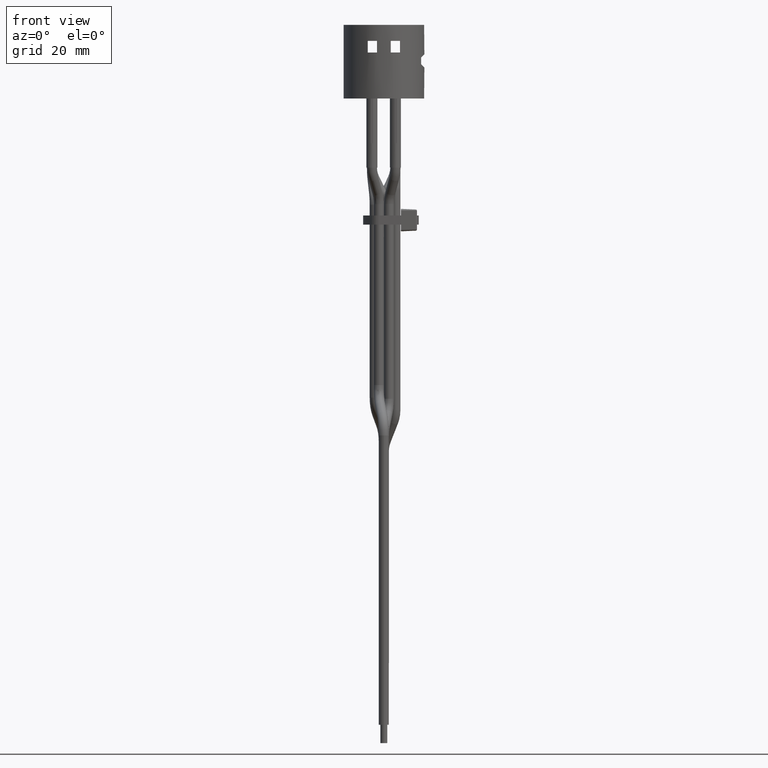
[diagram: clean part render]
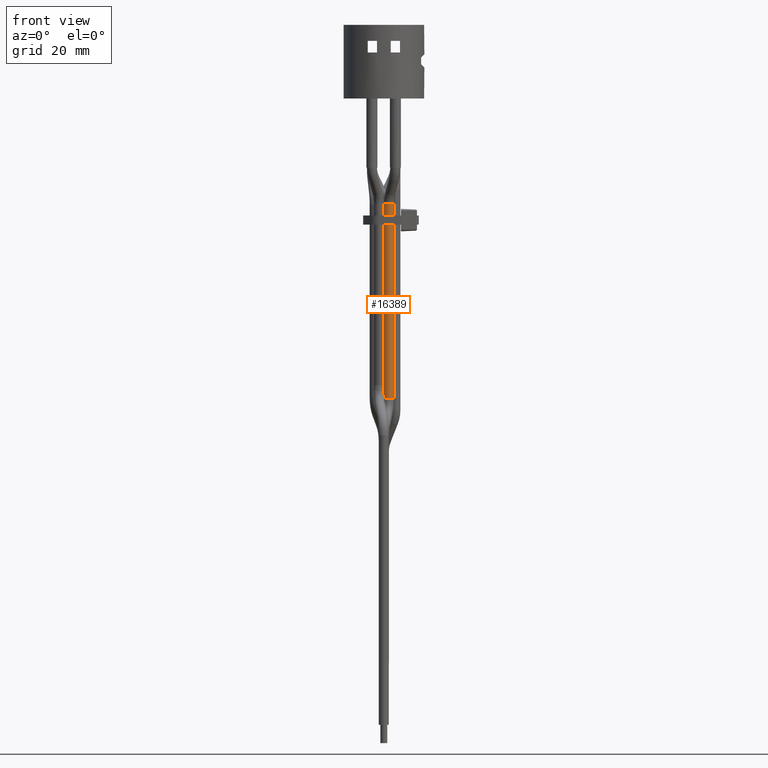
[diagram: same view with one face highlighted and labeled with its STEP entity id]
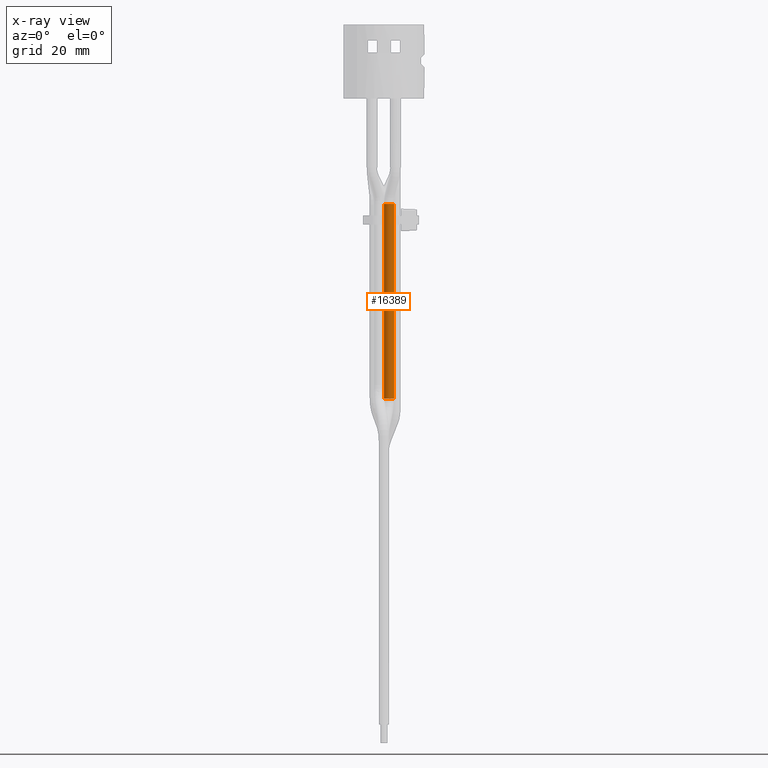
[diagram: x-ray of the same camera — body ghosted, the highlighted face saturated]
A machine part, front view. The second image highlights one B-rep face of the part: STEP entity #16389.
The next image is the same camera in x-ray: the body ghosted, the highlighted face saturated — about 0% of this face is hidden behind the body in this view.
In plain terms, the highlighted cylindrical surface (bore or boss wall) has radius 1.1 mm, axis along (-0, 0, -1).
Its self-contained STEP definition (entity closure, byte-faithful):
#278=B_SPLINE_CURVE_WITH_KNOTS('',3,(#27780,#27781,#27782,#27783,#27784,
#27785,#27786,#27787,#27788,#27789,#27790,#27791,#27792,#27793,#27794,#27795,
#27796,#27797,#27798,#27799,#27800,#27801,#27802,#27803,#27804,#27805,#27806,
#27807,#27808,#27809,#27810,#27811,#27812,#27813,#27814,#27815,#27816,#27817,
#27818,#27819,#27820,#27821,#27822,#27823,#27824,#27825,#27826,#27827,#27828,
#27829,#27830,#27831,#27832,#27833,#27834,#27835,#27836,#27837,#27838,#27839,
#27840,#27841,#27842,#27843,#27844,#27845,#27846,#27847,#27848,#27849,#27850,
#27851,#27852,#27853,#27854,#27855,#27856,#27857,#27858,#27859,#27860,#27861,
#27862,#27863,#27864,#27865,#27866,#27867),.UNSPECIFIED.,.T.,.F.,(4,3,3,
3,3,3,3,3,3,3,3,3,3,3,3,3,3,3,3,3,3,3,3,3,3,3,3,3,3,4),(0.,0.0270312087961584,
0.030322212422067,0.0328404931948495,0.0390493436604728,0.0423490448097362,
0.0448384015393162,0.0469690724152197,0.0492743538689225,0.0532454689323794,
0.0574714461744256,0.0626864634876148,0.0744597967960204,0.082100052280994,
0.149174861325131,0.153875207293144,0.155680570606546,0.163251708076886,
0.16656408072016,0.168024244686578,0.169358201216547,0.170686358117526,
0.172551392149834,0.175070981426416,0.178896618026233,0.184266452399935,
0.188952730462299,0.203072964237049,0.210923182804242,0.216249670369267),
 .UNSPECIFIED.);
#339=FACE_BOUND('',#2631,.T.);
#1747=FACE_OUTER_BOUND('',#2630,.T.);
#2630=EDGE_LOOP('',(#15288,#15289,#15290,#15291,#15292,#15293));
#2631=EDGE_LOOP('',(#15294));
#3051=CIRCLE('',#17571,1.1);
#3052=CIRCLE('',#17572,1.1);
#3053=CIRCLE('',#17574,1.1);
#3054=CIRCLE('',#17575,1.1);
#4889=LINE('',#27927,#6719);
#6719=VECTOR('',#21723,1.1);
#8270=VERTEX_POINT('',#27779);
#8287=VERTEX_POINT('',#27920);
#8288=VERTEX_POINT('',#27922);
#8289=VERTEX_POINT('',#27926);
#8290=VERTEX_POINT('',#27928);
#10612=EDGE_CURVE('',#8270,#8270,#278,.T.);
#10639=EDGE_CURVE('',#8287,#8288,#3051,.T.);
#10640=EDGE_CURVE('',#8288,#8287,#3052,.T.);
#10641=EDGE_CURVE('',#8288,#8289,#4889,.T.);
#10642=EDGE_CURVE('',#8289,#8290,#3053,.T.);
#10643=EDGE_CURVE('',#8290,#8289,#3054,.T.);
#15288=ORIENTED_EDGE('',*,*,#10640,.F.);
#15289=ORIENTED_EDGE('',*,*,#10641,.T.);
#15290=ORIENTED_EDGE('',*,*,#10642,.T.);
#15291=ORIENTED_EDGE('',*,*,#10643,.T.);
#15292=ORIENTED_EDGE('',*,*,#10641,.F.);
#15293=ORIENTED_EDGE('',*,*,#10639,.F.);
#15294=ORIENTED_EDGE('',*,*,#10612,.T.);
#15592=CYLINDRICAL_SURFACE('',#17573,1.1);
#16389=ADVANCED_FACE('',(#1747,#339),#15592,.T.);
#17571=AXIS2_PLACEMENT_3D('',#27923,#21717,#21718);
#17572=AXIS2_PLACEMENT_3D('',#27924,#21719,#21720);
#17573=AXIS2_PLACEMENT_3D('',#27925,#21721,#21722);
#17574=AXIS2_PLACEMENT_3D('',#27929,#21724,#21725);
#17575=AXIS2_PLACEMENT_3D('',#27930,#21726,#21727);
#21717=DIRECTION('center_axis',(-2.24820162486593E-15,5.49605137361719E-15,
-1.));
#21718=DIRECTION('ref_axis',(-4.99672001971651E-15,1.,5.56417869558283E-15));
#21719=DIRECTION('center_axis',(-2.24820162486593E-15,5.49605137361719E-15,
-1.));
#21720=DIRECTION('ref_axis',(-4.99672001971651E-15,1.,5.56417869558283E-15));
#21721=DIRECTION('center_axis',(-1.8318679906315E-15,4.88542871007335E-15,
-1.));
#21722=DIRECTION('ref_axis',(-4.99672001971652E-15,1.,4.88542871007336E-15));
#21723=DIRECTION('',(1.8318679906315E-15,-4.88542871007335E-15,1.));
#21724=DIRECTION('center_axis',(-2.24820162486593E-15,5.49605137361719E-15,
-1.));
#21725=DIRECTION('ref_axis',(-4.99672001971651E-15,1.,5.56417869558283E-15));
#21726=DIRECTION('center_axis',(-2.24820162486593E-15,5.49605137361719E-15,
-1.));
#21727=DIRECTION('ref_axis',(-4.99672001971651E-15,1.,5.56417869558283E-15));
#27779=CARTESIAN_POINT('',(0.0249704988524829,-2.49872316312273,-63.8158315884649));
#27780=CARTESIAN_POINT('Ctrl Pts',(0.0249704988524862,-2.49872316312275,
-63.8158315884649));
#27781=CARTESIAN_POINT('Ctrl Pts',(0.0277799263883275,-2.51381965630827,
-63.9046175057616));
#27782=CARTESIAN_POINT('Ctrl Pts',(0.0299658590464156,-2.52394935028852,
-63.9861814784253));
#27783=CARTESIAN_POINT('Ctrl Pts',(0.0306484680775249,-2.52714655122274,
-64.0522869505267));
#27784=CARTESIAN_POINT('Ctrl Pts',(0.0307315745643046,-2.52753580499036,
-64.0603351791509));
#27785=CARTESIAN_POINT('Ctrl Pts',(0.0307928211118201,-2.52782170583802,
-64.0681543318839));
#27786=CARTESIAN_POINT('Ctrl Pts',(0.0308310039093273,-2.52799985403299,
-64.0757295372205));
#27787=CARTESIAN_POINT('Ctrl Pts',(0.0308602214416499,-2.52813617329151,
-64.0815260953885));
#27788=CARTESIAN_POINT('Ctrl Pts',(0.03088085587618,-2.52823232466031,-64.08806064177));
#27789=CARTESIAN_POINT('Ctrl Pts',(0.0308774090972439,-2.52821625891492,
-64.095208843293));
#27790=CARTESIAN_POINT('Ctrl Pts',(0.030868911023783,-2.52817664863324,
-64.1128328170907));
#27791=CARTESIAN_POINT('Ctrl Pts',(0.0307068438765424,-2.52743562437691,
-64.1337145158797));
#27792=CARTESIAN_POINT('Ctrl Pts',(0.0301493550276978,-2.52479624001896,
-64.1524001491981));
#27793=CARTESIAN_POINT('Ctrl Pts',(0.0298530768993358,-2.52339353598421,
-64.162330651805));
#27794=CARTESIAN_POINT('Ctrl Pts',(0.0294461733446654,-2.52145737093101,
-64.1716397905276));
#27795=CARTESIAN_POINT('Ctrl Pts',(0.0289052430478075,-2.51882424736443,
-64.1795132553125));
#27796=CARTESIAN_POINT('Ctrl Pts',(0.0284971550380744,-2.51683776932483,
-64.185453145521));
#27797=CARTESIAN_POINT('Ctrl Pts',(0.0279759043445326,-2.5142867004578,
-64.1913578659643));
#27798=CARTESIAN_POINT('Ctrl Pts',(0.0272168748881652,-2.51044045415413,
-64.19601627266));
#27799=CARTESIAN_POINT('Ctrl Pts',(0.0265672122916325,-2.5071484048936,
-64.2000034599348));
#27800=CARTESIAN_POINT('Ctrl Pts',(0.0256595785840383,-2.50245159442321,
-64.2028686645715));
#27801=CARTESIAN_POINT('Ctrl Pts',(0.0247555077577372,-2.49756445539606,
-64.2027988925903));
#27802=CARTESIAN_POINT('Ctrl Pts',(0.0237773474363681,-2.49227681050994,
-64.2027234027264));
#27803=CARTESIAN_POINT('Ctrl Pts',(0.0229105983531285,-2.4873701939215,
-64.1999221541478));
#27804=CARTESIAN_POINT('Ctrl Pts',(0.0221790264886779,-2.48309716213079,
-64.1964982058939));
#27805=CARTESIAN_POINT('Ctrl Pts',(0.0209188089797682,-2.47573636855676,
-64.1906000573336));
#27806=CARTESIAN_POINT('Ctrl Pts',(0.0200216085109868,-2.4701038640639,
-64.1830817811223));
#27807=CARTESIAN_POINT('Ctrl Pts',(0.0192173117758219,-2.46488063846549,
-64.175239101964));
#27808=CARTESIAN_POINT('Ctrl Pts',(0.0183613960835427,-2.45932219149121,
-64.1668930875296));
#27809=CARTESIAN_POINT('Ctrl Pts',(0.0176921088316136,-2.45472206045109,
-64.1585892521189));
#27810=CARTESIAN_POINT('Ctrl Pts',(0.0170620166546613,-2.45022877808631,
-64.149703813251));
#27811=CARTESIAN_POINT('Ctrl Pts',(0.0162844588441228,-2.44468389604287,
-64.1387388423395));
#27812=CARTESIAN_POINT('Ctrl Pts',(0.0156350635373992,-2.43975387271563,
-64.1275912215501));
#27813=CARTESIAN_POINT('Ctrl Pts',(0.0150694613468018,-2.43527460521889,
-64.1166395942839));
#27814=CARTESIAN_POINT('Ctrl Pts',(0.0137925675782948,-2.42516228803,-64.0919153891028));
#27815=CARTESIAN_POINT('Ctrl Pts',(0.0127932634829365,-2.41612893617791,
-64.0650497042728));
#27816=CARTESIAN_POINT('Ctrl Pts',(0.0119927315128687,-2.40821804543965,
-64.0383536406484));
#27817=CARTESIAN_POINT('Ctrl Pts',(0.0114732296339198,-2.40308430593099,
-64.0210293416423));
#27818=CARTESIAN_POINT('Ctrl Pts',(0.0110428663196633,-2.39848057601964,
-64.0039852852634));
#27819=CARTESIAN_POINT('Ctrl Pts',(0.0106695116464493,-2.39425362102937,
-63.9871707611642));
#27820=CARTESIAN_POINT('Ctrl Pts',(0.00739178180340716,-2.35714462652414,
-63.8395538398012));
#27821=CARTESIAN_POINT('Ctrl Pts',(0.00717354344775943,-2.33862888728758,
-63.6659419084981));
#27822=CARTESIAN_POINT('Ctrl Pts',(0.00714563849322832,-2.33786959231912,
-63.5367213427858));
#27823=CARTESIAN_POINT('Ctrl Pts',(0.00714368302078812,-2.33781638383304,
-63.5276660599801));
#27824=CARTESIAN_POINT('Ctrl Pts',(0.0071449076650598,-2.3378498823153,
-63.5188287690433));
#27825=CARTESIAN_POINT('Ctrl Pts',(0.00714935615294526,-2.33797062349179,
-63.5102336940382));
#27826=CARTESIAN_POINT('Ctrl Pts',(0.00715106477968959,-2.33801699916114,
-63.5069323980919));
#27827=CARTESIAN_POINT('Ctrl Pts',(0.00715319253675884,-2.33807475956453,
-63.5035122063205));
#27828=CARTESIAN_POINT('Ctrl Pts',(0.00715717202369307,-2.33818220896441,
-63.4989715860541));
#27829=CARTESIAN_POINT('Ctrl Pts',(0.00717386076574119,-2.3386328186403,
-63.4799296237066));
#27830=CARTESIAN_POINT('Ctrl Pts',(0.00721464276561888,-2.33990416235256,
-63.4471095674708));
#27831=CARTESIAN_POINT('Ctrl Pts',(0.00738816411427408,-2.3440024851003,
-63.4187584861266));
#27832=CARTESIAN_POINT('Ctrl Pts',(0.00746407970431073,-2.34579550130244,
-63.4063548880385));
#27833=CARTESIAN_POINT('Ctrl Pts',(0.00756620400378578,-2.34812155449844,
-63.3948080145115));
#27834=CARTESIAN_POINT('Ctrl Pts',(0.00771249184422944,-2.35111753514394,
-63.3856398383502));
#27835=CARTESIAN_POINT('Ctrl Pts',(0.00777697862043037,-2.3524382268214,
-63.3815983122569));
#27836=CARTESIAN_POINT('Ctrl Pts',(0.0078526411937689,-2.35395188823215,
-63.3776959824871));
#27837=CARTESIAN_POINT('Ctrl Pts',(0.00796168545935476,-2.35599841618197,
-63.3741011184965));
#27838=CARTESIAN_POINT('Ctrl Pts',(0.00806130462095538,-2.35786805506172,
-63.3708169720548));
#27839=CARTESIAN_POINT('Ctrl Pts',(0.0081896853323082,-2.36021629554702,
-63.3676726418556));
#27840=CARTESIAN_POINT('Ctrl Pts',(0.00838578740143311,-2.36347838927065,
-63.3662083312654));
#27841=CARTESIAN_POINT('Ctrl Pts',(0.00858103687962302,-2.36672630042318,
-63.3647503870433));
#27842=CARTESIAN_POINT('Ctrl Pts',(0.00882510767476733,-2.37047849474715,
-63.3657709596063));
#27843=CARTESIAN_POINT('Ctrl Pts',(0.00902698600421834,-2.37339630223893,
-63.3677816518181));
#27844=CARTESIAN_POINT('Ctrl Pts',(0.00931046904340909,-2.37749356685268,
-63.3706051204918));
#27845=CARTESIAN_POINT('Ctrl Pts',(0.00954934703797054,-2.38065681365668,
-63.3747576119431));
#27846=CARTESIAN_POINT('Ctrl Pts',(0.00978509096872154,-2.38365639364526,
-63.3792898903776));
#27847=CARTESIAN_POINT('Ctrl Pts',(0.0101035719560118,-2.38770871089125,
-63.3854128242996));
#27848=CARTESIAN_POINT('Ctrl Pts',(0.0104170441664427,-2.39141807405109,
-63.3926175941617));
#27849=CARTESIAN_POINT('Ctrl Pts',(0.0107304897864023,-2.39494152440596,
-63.4003110799829));
#27850=CARTESIAN_POINT('Ctrl Pts',(0.0112064122103128,-2.40029138073394,
-63.4119925398189));
#27851=CARTESIAN_POINT('Ctrl Pts',(0.011649138223269,-2.40486813594676,
-63.4239504734441));
#27852=CARTESIAN_POINT('Ctrl Pts',(0.0121203387144829,-2.40947189383549,
-63.437015628896));
#27853=CARTESIAN_POINT('Ctrl Pts',(0.0127817367664429,-2.41593393399901,
-63.4553544645414));
#27854=CARTESIAN_POINT('Ctrl Pts',(0.0134653099608323,-2.42202893908059,
-63.4751078339524));
#27855=CARTESIAN_POINT('Ctrl Pts',(0.01409830034676,-2.42735238591357,-63.493498571524));
#27856=CARTESIAN_POINT('Ctrl Pts',(0.0146507138390249,-2.43199818136524,
-63.5095482490438));
#27857=CARTESIAN_POINT('Ctrl Pts',(0.0151411077903435,-2.43589954277124,
-63.5238946130971));
#27858=CARTESIAN_POINT('Ctrl Pts',(0.0156631018255573,-2.43989711343961,
-63.5391650448412));
#27859=CARTESIAN_POINT('Ctrl Pts',(0.0172359230939832,-2.45194220159215,
-63.5851764131807));
#27860=CARTESIAN_POINT('Ctrl Pts',(0.0189402486488541,-2.46339438373751,
-63.6348837475061));
#27861=CARTESIAN_POINT('Ctrl Pts',(0.0205973532441162,-2.47360958159428,
-63.6836596266691));
#27862=CARTESIAN_POINT('Ctrl Pts',(0.021518629298679,-2.47928877481176,
-63.7107768343828));
#27863=CARTESIAN_POINT('Ctrl Pts',(0.0224229927774076,-2.4845798738335,
-63.7376073779386));
#27864=CARTESIAN_POINT('Ctrl Pts',(0.023272127527676,-2.48937255344665,
-63.7633557517433));
#27865=CARTESIAN_POINT('Ctrl Pts',(0.023848277815674,-2.49262445632605,
-63.7808263981612));
#27866=CARTESIAN_POINT('Ctrl Pts',(0.0244169024170713,-2.49574840591398,
-63.7983363632977));
#27867=CARTESIAN_POINT('Ctrl Pts',(0.0249704988524861,-2.49872316312275,
-63.8158315884649));
#27920=CARTESIAN_POINT('',(0.8274666289736,-3.36151675998666,-65.2059077567592));
#27922=CARTESIAN_POINT('',(1.10640353474968,-3.39747061315088,-65.2059077567592));
#27923=CARTESIAN_POINT('Origin',(1.10640353474968,-2.29747061315088,-65.2059077567592));
#27924=CARTESIAN_POINT('Origin',(1.10640353474968,-2.29747061315088,-65.2059077567592));
#27925=CARTESIAN_POINT('Origin',(1.10640353474976,-2.29747061315109,-22.9109528446321));
#27926=CARTESIAN_POINT('',(1.10640353474976,-3.39747061315109,-22.9109528446321));
#27927=CARTESIAN_POINT('',(1.10640353474976,-3.39747061315109,-22.9109528446321));
#27928=CARTESIAN_POINT('',(1.61055151655191,-3.2751386613376,-22.9109528446321));
#27929=CARTESIAN_POINT('Origin',(1.10640353474976,-2.29747061315109,-22.9109528446321));
#27930=CARTESIAN_POINT('Origin',(1.10640353474976,-2.29747061315109,-22.9109528446321));